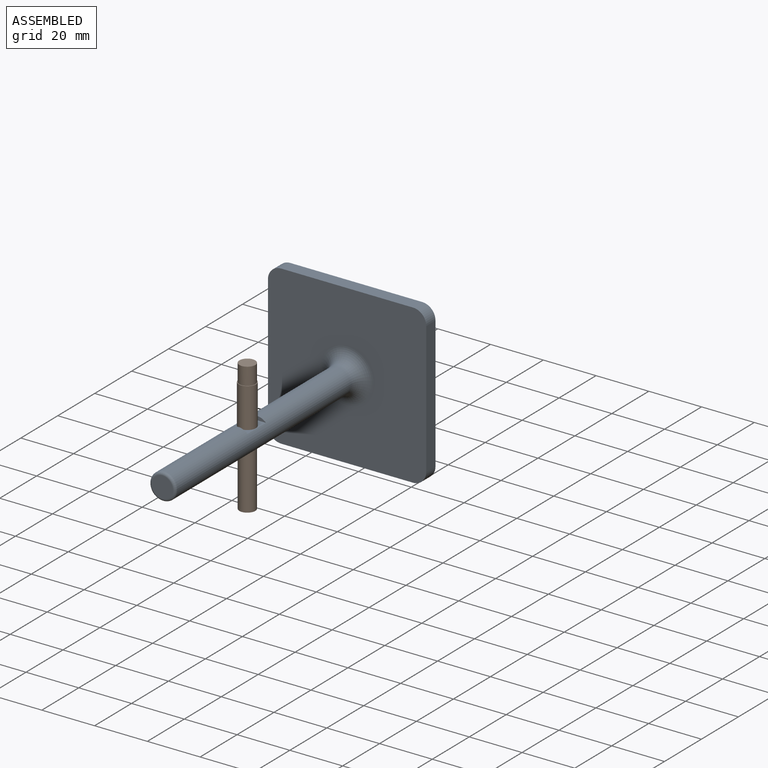
[diagram: assembled view]
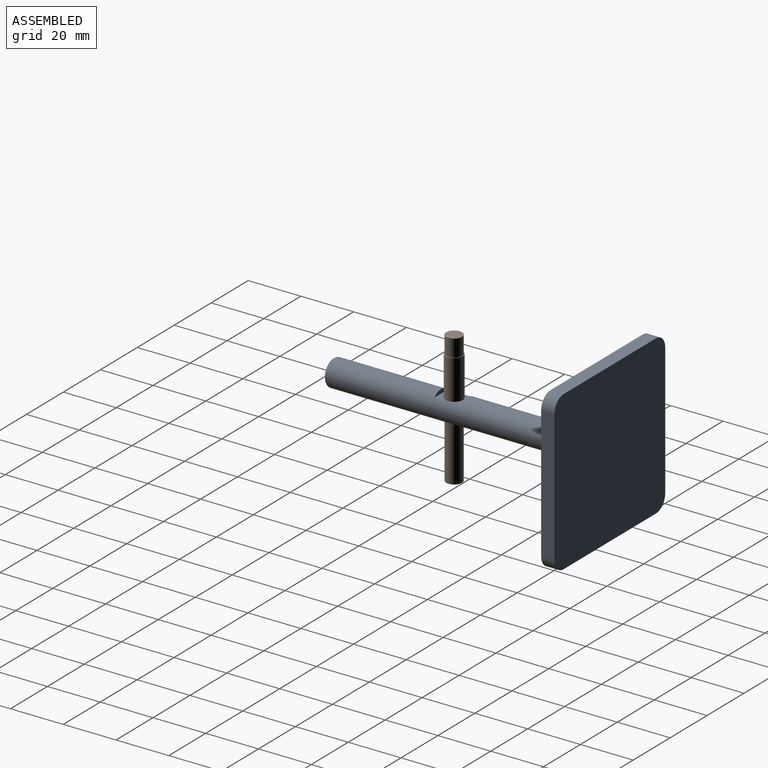
[diagram: assembled view, second angle]
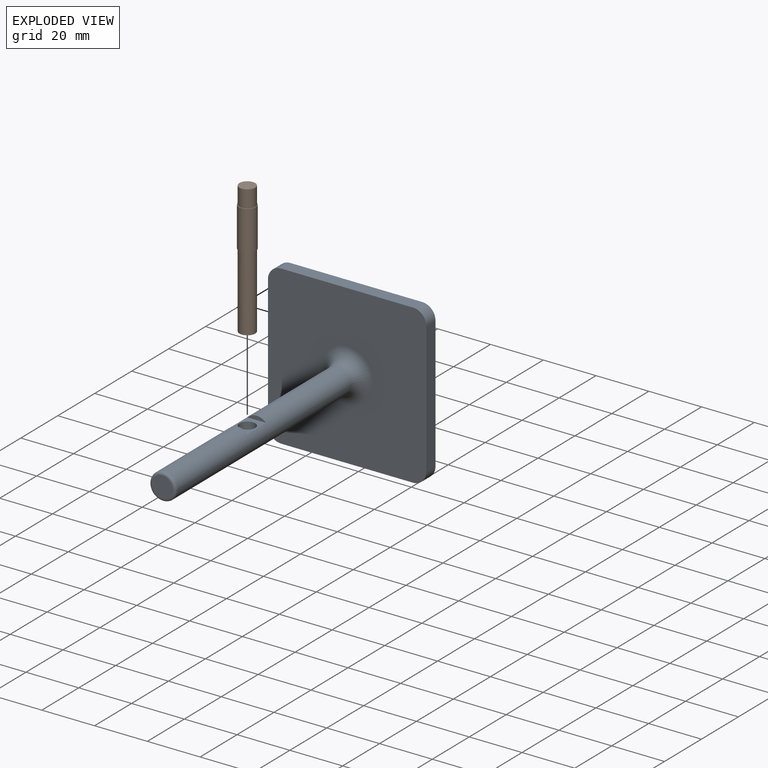
[diagram: exploded view]
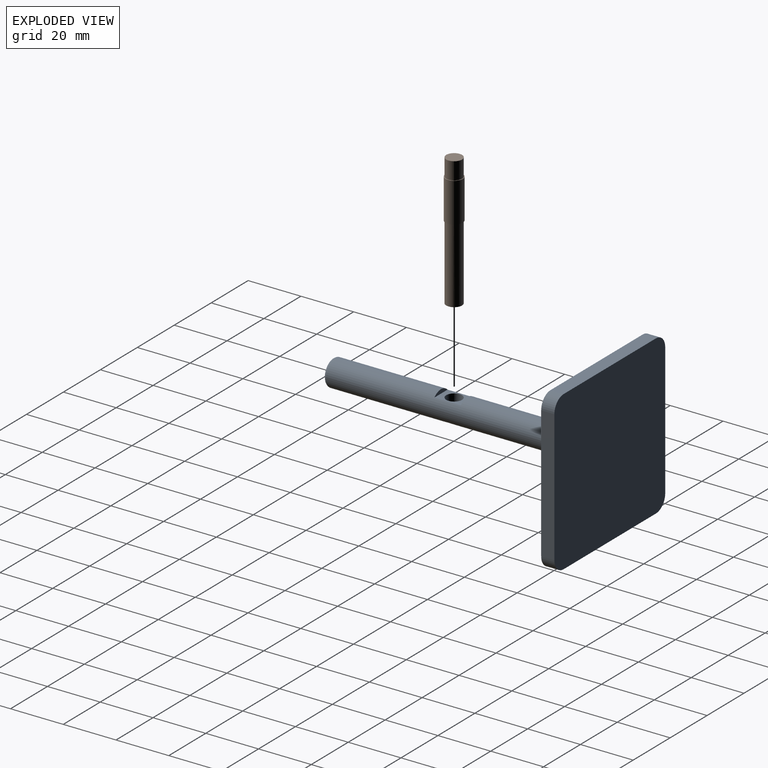
[diagram: exploded view, second angle]
ASSEMBLY  parts=2 mates=2
PART A: 18 faces, bbox 60x105x60 mm
  f0: cylinder r=3mm len=8.5mm, axis (0,0,1), area 151.1mm2, adj f11,f17
  f1: plane 50x5mm, normal (-1,0,0), area 250mm2, adj f2,f8,f9,f10
  f2: cylinder r=5mm len=5mm, axis (0,1,0), area 39.3mm2, adj f1,f3,f9,f10
  f3: plane 50x5mm, normal (0,0,-1), area 250mm2, adj f2,f4,f9,f10
  f4: cylinder r=5mm len=5mm, axis (0,1,0), area 39.3mm2, adj f3,f5,f9,f10
  f5: plane 50x5mm, normal (1,0,0), area 250mm2, adj f4,f6,f9,f10
  f6: cylinder r=5mm len=5mm, axis (0,1,0), area 39.3mm2, adj f5,f7,f9,f10
  f7: plane 50x5mm, normal (0,0,1), area 250mm2, adj f6,f8,f9,f10
  f8: cylinder r=5mm len=5mm, axis (0,1,0), area 39.3mm2, adj f1,f7,f9,f10
  f9: plane 60x60mm, normal (0,-1,0), area 3264.4mm2, adj f1,f2,f3,f4,f5,f6,f7,f8
  f10: plane 60x60mm, normal (0,1,0), area 3578.5mm2, adj f1,f2,f3,f4,f5,f6,f7,f8
  f11: cylinder r=5mm len=94mm, axis (0,1,0), area 2843.8mm2, adj f0,f13,f14,f15,f16,f17
  f12: plane 8x8mm, normal (0,-1,0), area 50.3mm2, adj f14
  f13: torus R=10mm, axis (0,-1,0), area 336.4mm2, adj f9,f11
  f14: torus R=4mm, axis (0,-1,0), area 45.8mm2, adj f11,f12
  f15: plane 7.14x1.5mm, normal (0,-1,0), area 7.4mm2, adj f11,f17
  f16: plane 7.14x1.5mm, normal (0,1,0), area 7.4mm2, adj f11,f17
  f17: plane 10x7.14mm, normal (0,0,1), area 43.1mm2, adj f0,f11,f15,f16
PART B: 7 faces, bbox 6.5x50x6.5 mm
  f0: cylinder r=3mm len=6.57mm, axis (0,1,0), area 123.9mm2, adj f1,f3
  f1: plane 6x6mm, normal (0,1,0), area 28.3mm2, adj f0
  f2: cylinder r=3.25mm len=15mm, axis (0,-1,0), area 306.3mm2, adj f3,f4
  f3: plane 6.5x6.5mm, normal (0,1,0), area 4.9mm2, adj f0,f2
  f4: plane 6.5x6.5mm, normal (0,-1,0), area 4.9mm2, adj f2,f6
  f5: plane 6x6mm, normal (0,-1,0), area 28.3mm2, adj f6
  f6: cylinder r=3mm len=28.43mm, axis (0,1,0), area 535.8mm2, adj f4,f5
PLACE A t=(-3.9,64.4,13.92)mm fixed
PLACE B rot(axis=(1,0,0),90deg) t=(-3.9,5.4,13.99)mm
MATE cylindrical A.f0 <-> B.f0  axis (0,0,1) through (-3.9,5.4,13.14)mm
MATE planar B.f2 <-> A.f0  axis (0,0,-1) through (-3.9,5.4,17.42)mm
